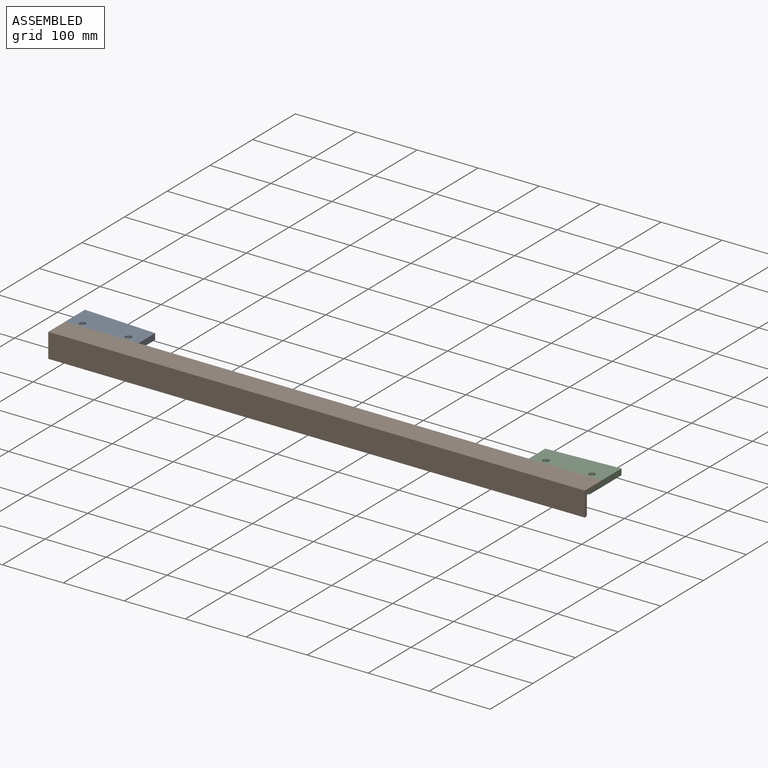
[diagram: assembled view]
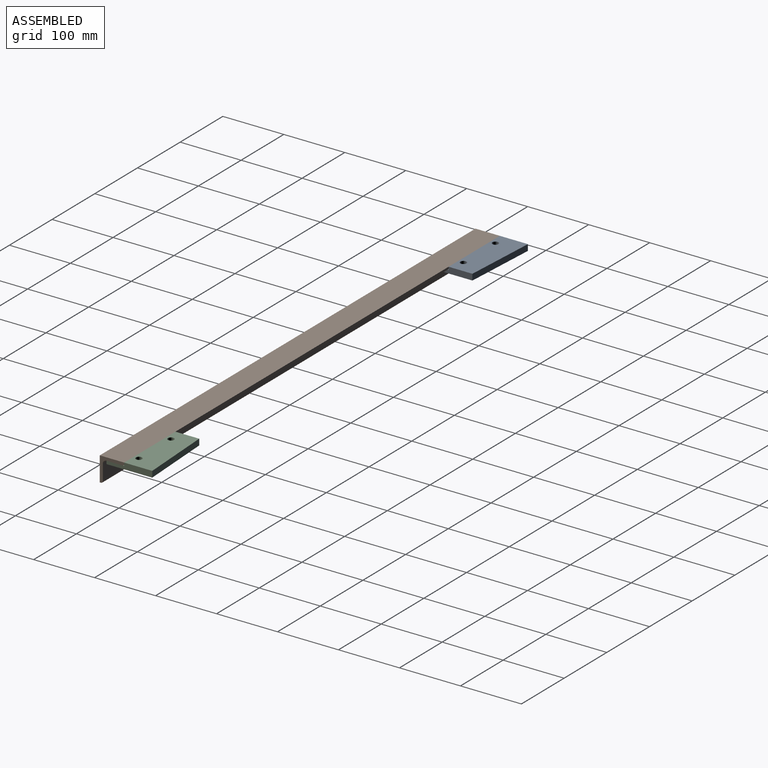
[diagram: assembled view, second angle]
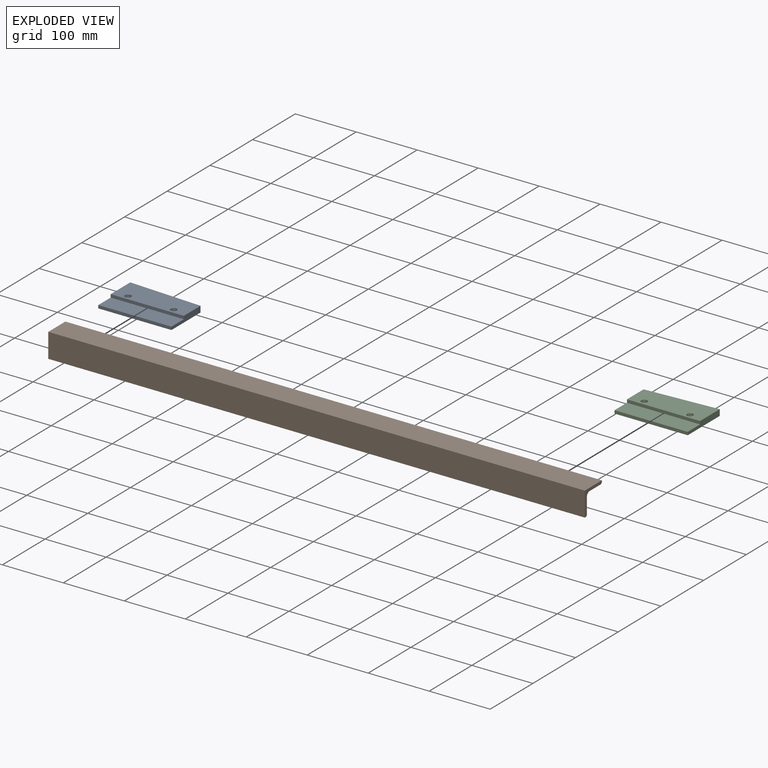
[diagram: exploded view]
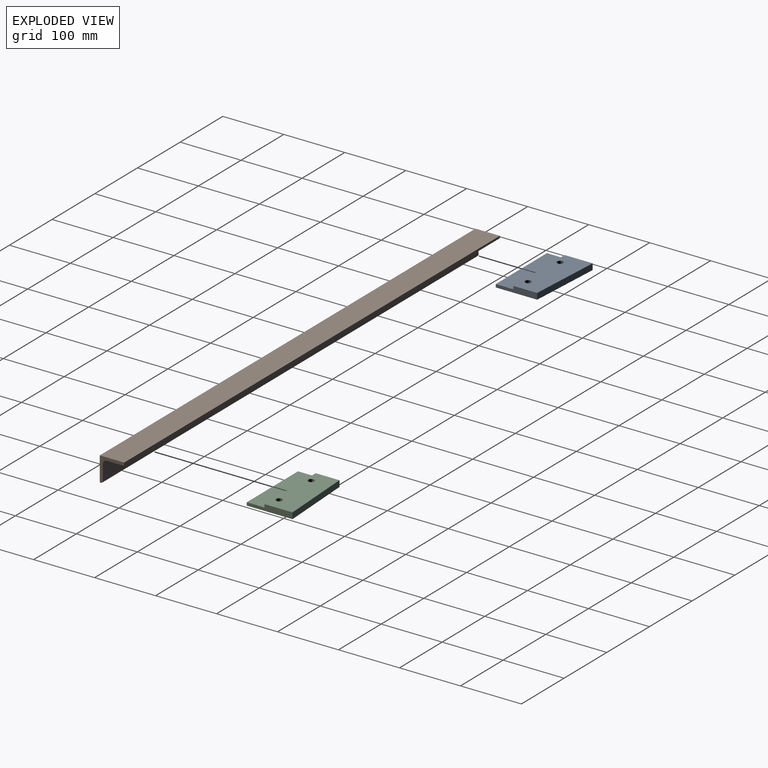
[diagram: exploded view, second angle]
ASSEMBLY  parts=3 mates=2
PART A: 10 faces, bbox 120x75x10 mm
  f0: plane 75x10mm, normal (1,0,0), area 605mm2, adj f1,f5,f6,f7,f8,f9
  f1: plane 120x5mm, normal (0,1,0), area 600mm2, adj f0,f2,f7,f9
  f2: plane 68x10mm, normal (-1,0,0), area 535mm2, adj f1,f5,f6,f7,f8,f9
  f3: cylinder r=5mm len=10mm, axis (0,0,-1), area 314.2mm2, adj f6,f7
  f4: cylinder r=5mm len=10mm, axis (0,0,-1), area 314.2mm2, adj f6,f7
  f5: plane 120x10mm, normal (-0.06,-1,0), area 1202mm2, adj f0,f2,f6,f7
  f6: plane 120x46mm, normal (0,0,1), area 4942.9mm2, adj f0,f2,f3,f4,f5,f8
  f7: plane 120x75mm, normal (0,0,-1), area 8422.9mm2, adj f0,f1,f2,f3,f4,f5
  f8: plane 120x5mm, normal (0,1,0), area 600mm2, adj f0,f2,f6,f9
  f9: plane 120x29mm, normal (0,0,1), area 3480mm2, adj f0,f1,f2,f8
PART B: 11 faces, bbox 880x40x40 mm
  f0: plane 40x40mm, normal (-1,0,0), area 378.9mm2, adj f2,f3,f4,f5,f6,f7,f8,f9
  f1: plane 40x40mm, normal (1,0,0), area 378.9mm2, adj f2,f3,f4,f5,f6,f7,f8,f9
  f2: plane 880x2mm, normal (0,0,1), area 1760mm2, adj f0,f1,f3,f10
  f3: cylinder r=3mm len=880mm, axis (1,0,0), area 4146.9mm2, adj f0,f1,f2,f4
  f4: plane 880x26mm, normal (0,-1,0), area 22880mm2, adj f0,f1,f3,f5
  f5: cylinder r=6mm len=880mm, axis (1,0,0), area 8293.8mm2, adj f0,f1,f4,f6
  f6: plane 880x26mm, normal (0,0,1), area 22880mm2, adj f0,f1,f5,f7
  f7: cylinder r=3mm len=880mm, axis (1,0,0), area 4146.9mm2, adj f0,f1,f6,f8
  f8: plane 880x2mm, normal (0,-1,0), area 1760mm2, adj f0,f1,f7,f9
  f9: plane 880x40mm, normal (0,0,-1), area 35200mm2, adj f0,f1,f8,f10
  f10: plane 880x40mm, normal (0,1,0), area 35200mm2, adj f0,f1,f2,f9
PART C: 10 faces, bbox 120x75x10 mm
  f0: plane 68x10mm, normal (1,0,0), area 535mm2, adj f1,f4,f6,f7,f8,f9
  f1: plane 120x5mm, normal (0,1,0), area 600mm2, adj f0,f2,f7,f9
  f2: plane 75x10mm, normal (-1,0,0), area 605mm2, adj f1,f4,f6,f7,f8,f9
  f3: cylinder r=5mm len=10mm, axis (0,0,-1), area 314.2mm2, adj f6,f7
  f4: plane 120x10mm, normal (0.06,-1,0), area 1202mm2, adj f0,f2,f6,f7
  f5: cylinder r=5mm len=10mm, axis (0,0,-1), area 314.2mm2, adj f6,f7
  f6: plane 120x46mm, normal (0,0,1), area 4942.9mm2, adj f0,f2,f3,f4,f5,f8
  f7: plane 120x75mm, normal (0,0,-1), area 8422.9mm2, adj f0,f1,f2,f3,f4,f5
  f8: plane 120x5mm, normal (0,1,0), area 600mm2, adj f0,f2,f6,f9
  f9: plane 120x29mm, normal (0,0,1), area 3480mm2, adj f0,f1,f2,f8
PLACE A rot(axis=(0,0,-1),180deg) t=(-748.74,-3.12,-5.49)mm
PLACE B rot(axis=(1,0,0),180deg) t=(-368.74,-44.27,4.51)mm
PLACE C rot(axis=(0,0,-1),180deg) t=(-108.74,-3.12,-5.49)mm
MATE fastened B.f8 <-> A.f8  axis (0,-1,0) through (-808.74,-11.62,4.51)mm
MATE fastened C.f8 <-> B.f8  axis (0,1,0) through (71.26,-11.62,4.51)mm
